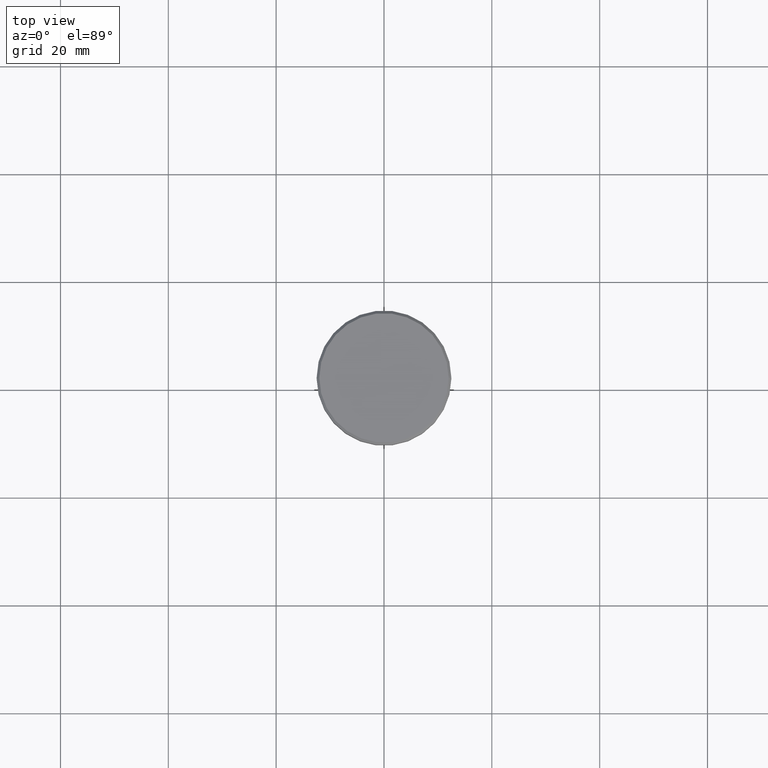
[diagram: clean part render]
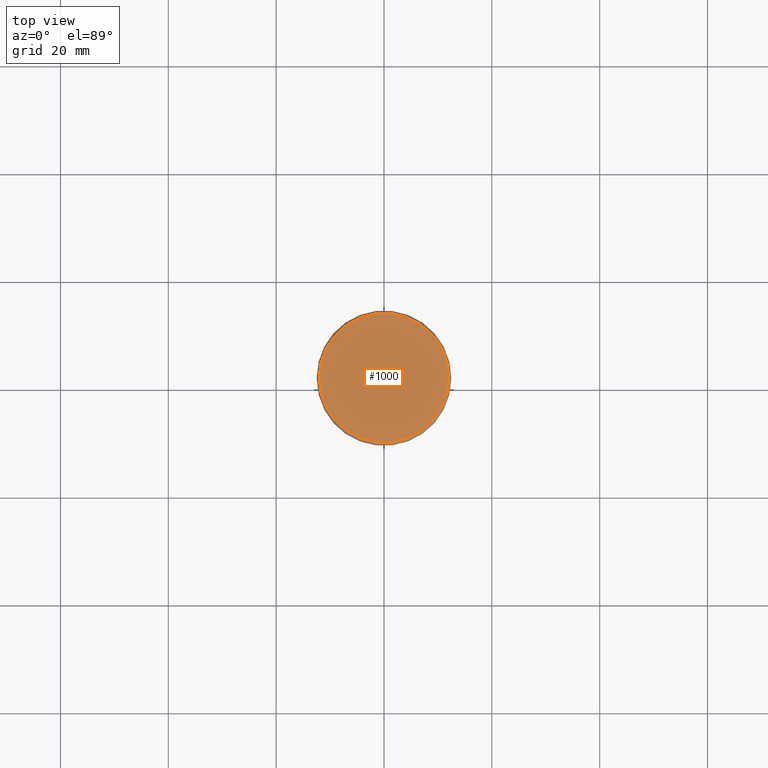
[diagram: same view with one face highlighted and labeled with its STEP entity id]
A machine part, top view. The second image highlights one B-rep face of the part: STEP entity #1000.
In plain terms, the highlighted planar face has unit normal (0, -0, 1).
Its self-contained STEP definition (entity closure, byte-faithful):
#1 = AXIS2_PLACEMENT_3D ( 'NONE', #491, #611, #957 ) ;
#11 = FACE_OUTER_BOUND ( 'NONE', #866, .T. ) ;
#92 = DIRECTION ( 'NONE',  ( -0.000000000000000000, -0.000000000000000000, 1.000000000000000000 ) ) ;
#105 = DIRECTION ( 'NONE',  ( 1.000000000000000000, 0.000000000000000000, 0.000000000000000000 ) ) ;
#108 = ORIENTED_EDGE ( 'NONE', *, *, #919, .T. ) ;
#187 = CARTESIAN_POINT ( 'NONE',  ( 0.000000000000000000, 0.000000000000000000, 0.000000000000000000 ) ) ;
#226 = EDGE_CURVE ( 'NONE', #979, #1039, #1145, .T. ) ;
#248 = ORIENTED_EDGE ( 'NONE', *, *, #226, .T. ) ;
#267 = CIRCLE ( 'NONE', #1161, 12.00000000000001066 ) ;
#383 = AXIS2_PLACEMENT_3D ( 'NONE', #926, #651, #105 ) ;
#491 = CARTESIAN_POINT ( 'NONE',  ( 0.000000000000000000, 0.000000000000000000, 0.000000000000000000 ) ) ;
#545 = CARTESIAN_POINT ( 'NONE',  ( 12.00000000000001066, 1.500192328955508326E-15, 0.000000000000000000 ) ) ;
#611 = DIRECTION ( 'NONE',  ( -0.000000000000000000, -0.000000000000000000, 1.000000000000000000 ) ) ;
#651 = DIRECTION ( 'NONE',  ( 0.000000000000000000, -0.000000000000000000, 1.000000000000000000 ) ) ;
#743 = DIRECTION ( 'NONE',  ( 1.000000000000000000, 0.000000000000000000, 0.000000000000000000 ) ) ;
#866 = EDGE_LOOP ( 'NONE', ( #248, #108 ) ) ;
#918 = PLANE ( 'NONE',  #383 ) ;
#919 = EDGE_CURVE ( 'NONE', #1039, #979, #267, .T. ) ;
#926 = CARTESIAN_POINT ( 'NONE',  ( 0.000000000000000000, 0.000000000000000000, 0.000000000000000000 ) ) ;
#957 = DIRECTION ( 'NONE',  ( 1.000000000000000000, 0.000000000000000000, 0.000000000000000000 ) ) ;
#979 = VERTEX_POINT ( 'NONE', #992 ) ;
#992 = CARTESIAN_POINT ( 'NONE',  ( -12.00000000000001066, 0.000000000000000000, 0.000000000000000000 ) ) ;
#1000 = ADVANCED_FACE ( 'NONE', ( #11 ), #918, .T. ) ;
#1039 = VERTEX_POINT ( 'NONE', #545 ) ;
#1145 = CIRCLE ( 'NONE', #1, 12.00000000000001066 ) ;
#1161 = AXIS2_PLACEMENT_3D ( 'NONE', #187, #92, #743 ) ;